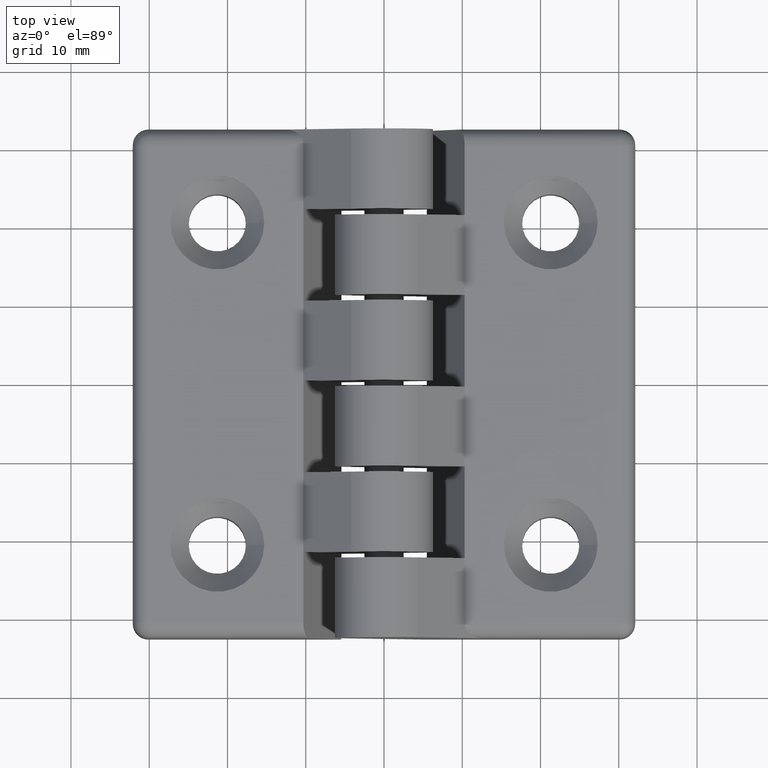
[diagram: clean part render]
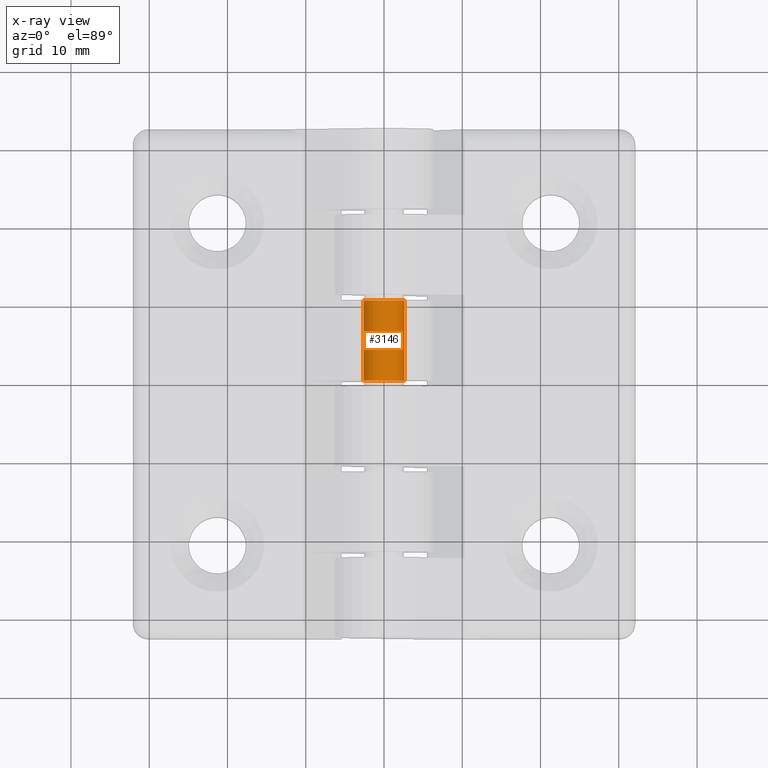
[diagram: x-ray — body ghosted, one internal face saturated and labeled with its STEP entity id]
A machine part, top view, then the same camera in x-ray: the body is ghosted and one INTERNAL B-rep face — a face not visible from any outside direction — is saturated and labeled: STEP entity #3146.
In plain terms, the highlighted cylindrical surface (bore or boss wall) has radius 2.6 mm, axis along (0, 1, 0).
Its self-contained STEP definition (entity closure, byte-faithful):
#44=FACE_BOUND('',#424,.T.);
#240=FACE_OUTER_BOUND('',#423,.T.);
#423=EDGE_LOOP('',(#2252));
#424=EDGE_LOOP('',(#2253));
#646=CIRCLE('',#3344,2.6);
#647=CIRCLE('',#3345,2.6);
#1470=VERTEX_POINT('',#4610);
#1471=VERTEX_POINT('',#4612);
#1782=EDGE_CURVE('',#1470,#1470,#646,.T.);
#1783=EDGE_CURVE('',#1471,#1471,#647,.T.);
#2252=ORIENTED_EDGE('',*,*,#1782,.F.);
#2253=ORIENTED_EDGE('',*,*,#1783,.F.);
#3105=CYLINDRICAL_SURFACE('',#3343,2.6);
#3146=ADVANCED_FACE('',(#240,#44),#3105,.F.);
#3343=AXIS2_PLACEMENT_3D('',#4609,#3679,#3680);
#3344=AXIS2_PLACEMENT_3D('',#4611,#3681,#3682);
#3345=AXIS2_PLACEMENT_3D('',#4613,#3683,#3684);
#3679=DIRECTION('center_axis',(0.,1.,0.));
#3680=DIRECTION('ref_axis',(1.,0.,0.));
#3681=DIRECTION('center_axis',(4.79570991877147E-17,-1.,6.54187917841564E-17));
#3682=DIRECTION('ref_axis',(1.,4.79570991877147E-17,-3.13729548633324E-33));
#3683=DIRECTION('center_axis',(-4.79570991877147E-17,1.,-6.54187917841564E-17));
#3684=DIRECTION('ref_axis',(1.,4.79570991877147E-17,-3.13729548633324E-33));
#4609=CARTESIAN_POINT('Origin',(0.,-32.5,0.));
#4610=CARTESIAN_POINT('',(-2.6,10.58,-3.18408167778312E-16));
#4611=CARTESIAN_POINT('Origin',(0.,10.58,0.));
#4612=CARTESIAN_POINT('',(-2.6,0.380000000000003,3.18408167778312E-16));
#4613=CARTESIAN_POINT('Origin',(0.,0.380000000000003,0.));